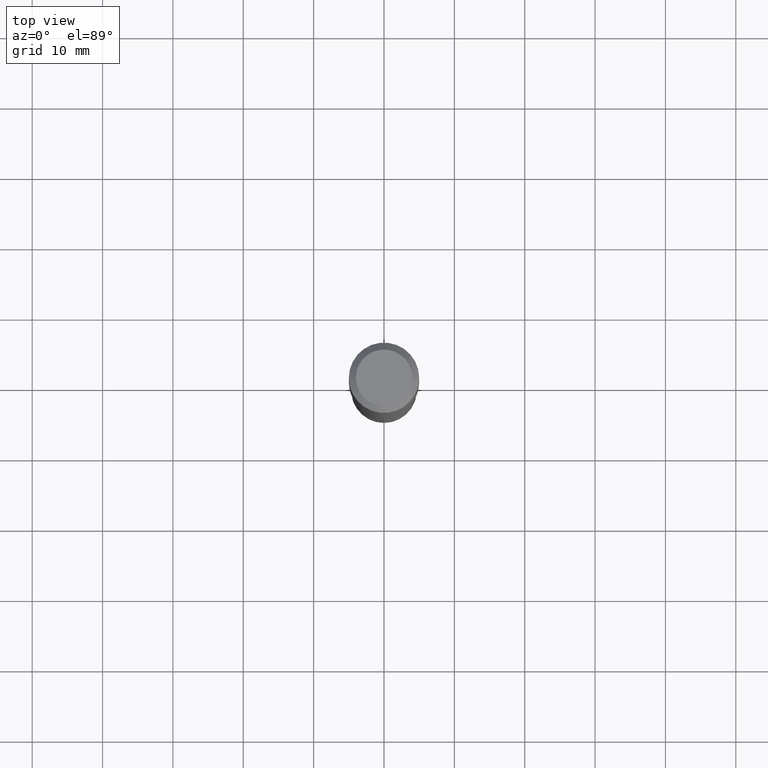
[diagram: clean part render]
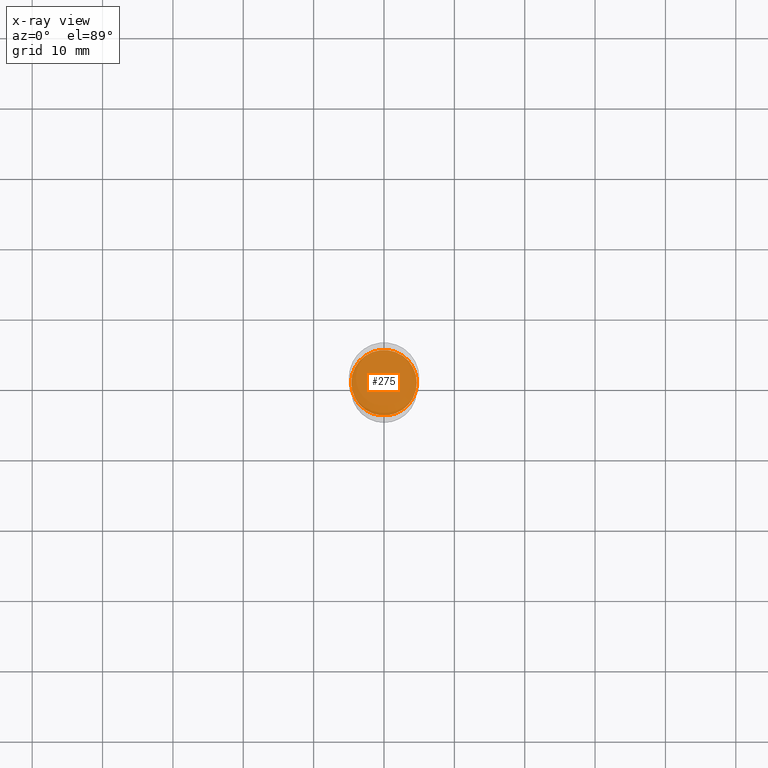
[diagram: x-ray — body ghosted, one internal face saturated and labeled with its STEP entity id]
A machine part, top view, then the same camera in x-ray: the body is ghosted and one INTERNAL B-rep face — a face not visible from any outside direction — is saturated and labeled: STEP entity #275.
In plain terms, the highlighted planar face has unit normal (-0, 0, 1).
Its self-contained STEP definition (entity closure, byte-faithful):
#10 = DIRECTION ( 'NONE',  ( 1.000000000000000000, -6.982962677686265922E-15, 4.876176775795935793E-29 ) ) ;
#27 = EDGE_LOOP ( 'NONE', ( #205, #427 ) ) ;
#33 = CARTESIAN_POINT ( 'NONE',  ( 0.1834999999999999964, -7.054188896998686144E-15, -1.653399999999999981 ) ) ;
#45 = PLANE ( 'NONE',  #370 ) ;
#47 = AXIS2_PLACEMENT_3D ( 'NONE', #286, #167, #390 ) ;
#53 = VERTEX_POINT ( 'NONE', #187 ) ;
#77 = DIRECTION ( 'NONE',  ( -2.445468806185136597E-29, 3.491481338843145583E-15, 1.000000000000000000 ) ) ;
#110 = VERTEX_POINT ( 'NONE', #33 ) ;
#123 = FACE_OUTER_BOUND ( 'NONE', #27, .T. ) ;
#132 = CIRCLE ( 'NONE', #161, 0.1834999999999999964 ) ;
#161 = AXIS2_PLACEMENT_3D ( 'NONE', #193, #77, #350 ) ;
#167 = DIRECTION ( 'NONE',  ( -2.445468806185136597E-29, 3.491481338843145583E-15, 1.000000000000000000 ) ) ;
#187 = CARTESIAN_POINT ( 'NONE',  ( -0.1834999999999999964, -4.466320098349360965E-15, -1.653399999999999981 ) ) ;
#193 = CARTESIAN_POINT ( 'NONE',  ( 4.043338124146504977E-29, -5.772815245643255982E-15, -1.653399999999999981 ) ) ;
#203 = EDGE_CURVE ( 'NONE', #110, #53, #132, .T. ) ;
#205 = ORIENTED_EDGE ( 'NONE', *, *, #203, .F. ) ;
#274 = DIRECTION ( 'NONE',  ( -2.438088387897960049E-29, 3.491481338843145188E-15, 1.000000000000000000 ) ) ;
#275 = ADVANCED_FACE ( 'NONE', ( #123 ), #45, .F. ) ;
#286 = CARTESIAN_POINT ( 'NONE',  ( 4.043338124146504977E-29, -5.772815245643255982E-15, -1.653399999999999981 ) ) ;
#337 = EDGE_CURVE ( 'NONE', #53, #110, #395, .T. ) ;
#345 = CARTESIAN_POINT ( 'NONE',  ( 2.324487579557410015E-29, -8.234307056392298500E-15, -1.653399999999999981 ) ) ;
#350 = DIRECTION ( 'NONE',  ( 1.000000000000000000, -6.982962677686266711E-15, 0.000000000000000000 ) ) ;
#370 = AXIS2_PLACEMENT_3D ( 'NONE', #345, #274, #10 ) ;
#390 = DIRECTION ( 'NONE',  ( 1.000000000000000000, -6.982962677686266711E-15, 0.000000000000000000 ) ) ;
#395 = CIRCLE ( 'NONE', #47, 0.1834999999999999964 ) ;
#427 = ORIENTED_EDGE ( 'NONE', *, *, #337, .F. ) ;